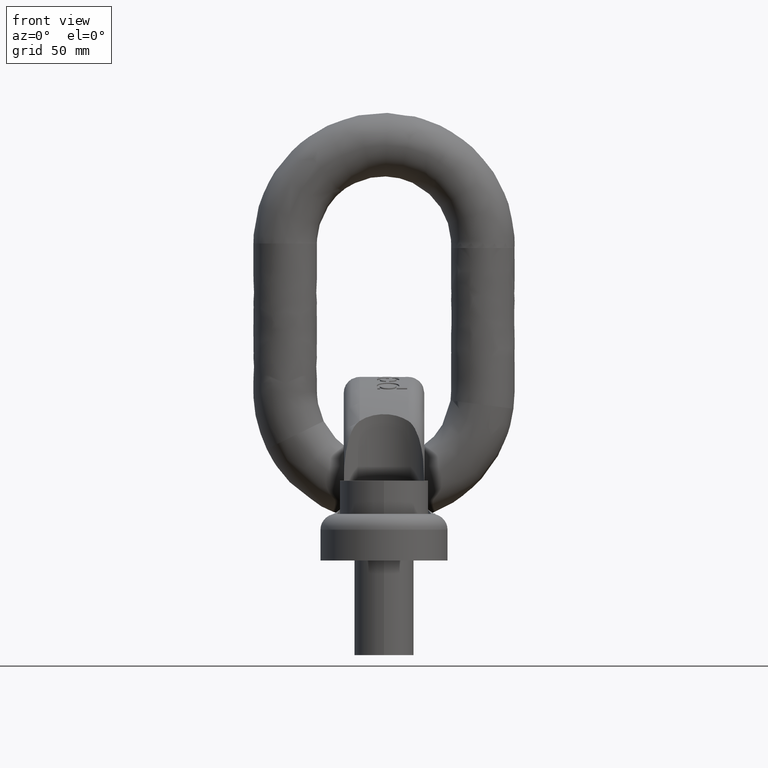
[diagram: clean part render]
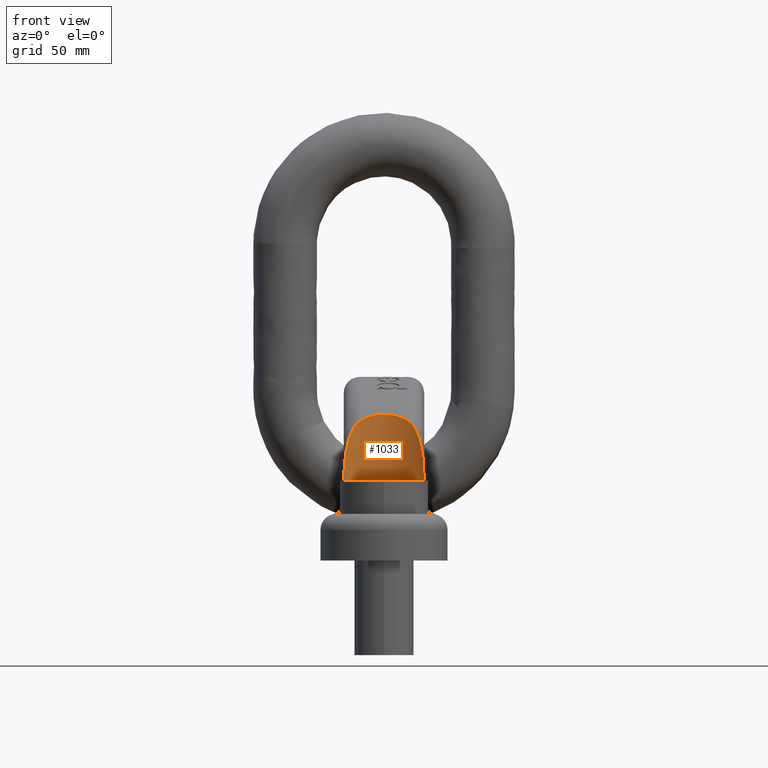
[diagram: same view with one face highlighted and labeled with its STEP entity id]
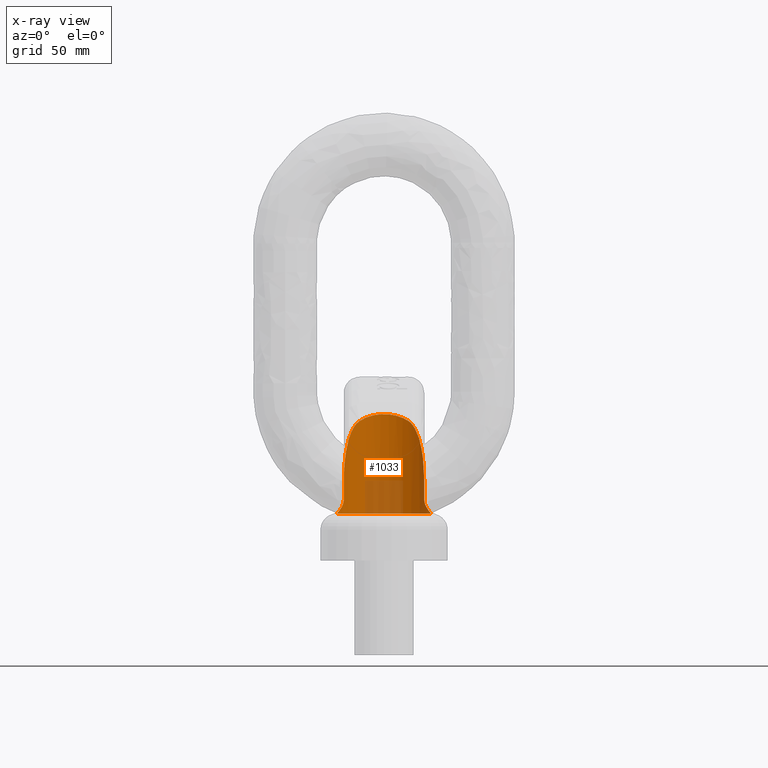
[diagram: x-ray of the same camera — body ghosted, the highlighted face saturated]
A machine part, front view. The second image highlights one B-rep face of the part: STEP entity #1033.
The next image is the same camera in x-ray: the body ghosted, the highlighted face saturated — about 17% of this face is hidden behind the body in this view.
In plain terms, the highlighted cylindrical surface (partial cylindrical patch) has radius 33.5 mm, axis along (0, 0, -1).
Its self-contained STEP definition (entity closure, byte-faithful):
#879=FACE_OUTER_BOUND('',#1616,.T.);
#1033=ADVANCED_FACE('',(#879),#1164,.F.);
#1164=CYLINDRICAL_SURFACE('',#3668,33.5);
#1183=LINE('',#4936,#1313);
#1189=LINE('',#4967,#1319);
#1313=VECTOR('',#3804,1.);
#1319=VECTOR('',#3816,1.);
#1616=EDGE_LOOP('',(#2396,#2397,#2398,#2399,#2400,#2401,#2402,#2403,#2404,
#2405,#2406,#2407));
#1758=B_SPLINE_CURVE_WITH_KNOTS('',3,(#4582,#4583,#4584,#4585,#4586,#4587,
#4588,#4589,#4590,#4591),.UNSPECIFIED.,.F.,.F.,(4,2,2,2,4),(0.,0.25,0.5,
0.75,1.),.UNSPECIFIED.);
#1784=B_SPLINE_CURVE_WITH_KNOTS('',3,(#4998,#4999,#5000,#5001,#5002,#5003,
#5004,#5005,#5006,#5007),.UNSPECIFIED.,.F.,.F.,(4,2,2,2,4),(0.,0.125,0.25,
0.500000000000001,1.),.UNSPECIFIED.);
#1786=B_SPLINE_CURVE_WITH_KNOTS('',3,(#5019,#5020,#5021,#5022,#5023,#5024,
#5025,#5026,#5027,#5028,#5029,#5030),.UNSPECIFIED.,.F.,.F.,(4,2,2,2,2,4),
(0.,0.25,0.5,0.75,0.875,1.),.UNSPECIFIED.);
#1814=B_SPLINE_CURVE_WITH_KNOTS('',3,(#5767,#5768,#5769,#5770,#5771,#5772),
 .UNSPECIFIED.,.F.,.F.,(4,2,4),(0.,0.5,1.),.UNSPECIFIED.);
#1815=B_SPLINE_CURVE_WITH_KNOTS('',3,(#5776,#5777,#5778,#5779,#5780,#5781),
 .UNSPECIFIED.,.F.,.F.,(4,2,4),(0.,0.5,1.),.UNSPECIFIED.);
#1816=B_SPLINE_CURVE_WITH_KNOTS('',3,(#5800,#5801,#5802,#5803),
 .UNSPECIFIED.,.F.,.F.,(4,4),(0.,1.),.UNSPECIFIED.);
#1817=B_SPLINE_CURVE_WITH_KNOTS('',3,(#5818,#5819,#5820,#5821),
 .UNSPECIFIED.,.F.,.F.,(4,4),(0.,1.),.UNSPECIFIED.);
#1818=B_SPLINE_CURVE_WITH_KNOTS('',3,(#5836,#5837,#5838,#5839,#5840,#5841),
 .UNSPECIFIED.,.F.,.F.,(4,2,4),(0.,0.5,1.),.UNSPECIFIED.);
#1819=B_SPLINE_CURVE_WITH_KNOTS('',3,(#5860,#5861,#5862,#5863,#5864,#5865),
 .UNSPECIFIED.,.F.,.F.,(4,2,4),(0.,0.5,1.),.UNSPECIFIED.);
#1994=CIRCLE('',#3611,33.5);
#2396=ORIENTED_EDGE('',*,*,#3267,.T.);
#2397=ORIENTED_EDGE('',*,*,#3324,.F.);
#2398=ORIENTED_EDGE('',*,*,#3326,.F.);
#2399=ORIENTED_EDGE('',*,*,#3327,.F.);
#2400=ORIENTED_EDGE('',*,*,#3182,.T.);
#2401=ORIENTED_EDGE('',*,*,#3204,.T.);
#2402=ORIENTED_EDGE('',*,*,#3146,.F.);
#2403=ORIENTED_EDGE('',*,*,#3202,.T.);
#2404=ORIENTED_EDGE('',*,*,#3192,.T.);
#2405=ORIENTED_EDGE('',*,*,#3319,.F.);
#2406=ORIENTED_EDGE('',*,*,#3321,.F.);
#2407=ORIENTED_EDGE('',*,*,#3322,.F.);
#2880=VERTEX_POINT('',#4581);
#2881=VERTEX_POINT('',#4592);
#2916=VERTEX_POINT('',#4937);
#2917=VERTEX_POINT('',#4938);
#2926=VERTEX_POINT('',#4968);
#2927=VERTEX_POINT('',#4969);
#2981=VERTEX_POINT('',#5266);
#2982=VERTEX_POINT('',#5267);
#3000=VERTEX_POINT('',#5766);
#3001=VERTEX_POINT('',#5775);
#3002=VERTEX_POINT('',#5817);
#3003=VERTEX_POINT('',#5835);
#3146=EDGE_CURVE('',#2880,#2881,#1758,.T.);
#3182=EDGE_CURVE('',#2916,#2917,#1183,.T.);
#3192=EDGE_CURVE('',#2926,#2927,#1189,.T.);
#3202=EDGE_CURVE('',#2880,#2926,#1784,.T.);
#3204=EDGE_CURVE('',#2917,#2881,#1786,.T.);
#3267=EDGE_CURVE('',#2981,#2982,#1994,.T.);
#3319=EDGE_CURVE('',#3000,#2927,#1814,.T.);
#3321=EDGE_CURVE('',#3001,#3000,#1815,.T.);
#3322=EDGE_CURVE('',#2981,#3001,#1816,.T.);
#3324=EDGE_CURVE('',#3002,#2982,#1817,.T.);
#3326=EDGE_CURVE('',#3003,#3002,#1818,.T.);
#3327=EDGE_CURVE('',#2916,#3003,#1819,.T.);
#3611=AXIS2_PLACEMENT_3D('',#5265,#3933,#3934);
#3668=AXIS2_PLACEMENT_3D('',#5938,#4056,#4057);
#3804=DIRECTION('',(0.,0.,1.));
#3816=DIRECTION('',(0.,0.,-1.));
#3933=DIRECTION('',(0.,0.,-1.));
#3934=DIRECTION('',(-1.,0.,0.));
#4056=DIRECTION('',(0.,0.,-1.));
#4057=DIRECTION('',(-1.,0.,0.));
#4581=CARTESIAN_POINT('',(-17.25,-71.2826272093006,98.7859183879032));
#4582=CARTESIAN_POINT('',(-17.25,-71.2826272093006,98.7859183879032));
#4583=CARTESIAN_POINT('',(-14.8813647937172,-69.8598314122697,100.327595161293));
#4584=CARTESIAN_POINT('',(-12.1966958032285,-68.649245317609,101.539626679179));
#4585=CARTESIAN_POINT('',(-6.3098938495463,-66.9573843759394,103.193361406412));
#4586=CARTESIAN_POINT('',(-3.19926131233263,-66.5018806193998,103.615153336341));
#4587=CARTESIAN_POINT('',(3.15975479605188,-66.4981310281,103.618684329301));
#4588=CARTESIAN_POINT('',(6.28871737302941,-66.952798327085,103.197740495797));
#4589=CARTESIAN_POINT('',(12.1876928625858,-68.6451654876727,101.543717653134));
#4590=CARTESIAN_POINT('',(14.8815531721434,-69.8599445677432,100.327472551171));
#4591=CARTESIAN_POINT('',(17.24999999998,-71.2826272092886,98.7859183879162));
#4592=CARTESIAN_POINT('',(17.24999999998,-71.2826272092887,98.7859183879162));
#4936=CARTESIAN_POINT('',(28.5,-82.393183138341,139.7));
#4937=CARTESIAN_POINT('',(28.5,-82.393183138341,43.4352484422014));
#4938=CARTESIAN_POINT('',(28.5,-82.393183138341,56.7576487121894));
#4967=CARTESIAN_POINT('',(-28.5,-82.393183138341,139.7));
#4968=CARTESIAN_POINT('',(-28.5,-82.393183138341,56.7576487122078));
#4969=CARTESIAN_POINT('',(-28.5,-82.393183138341,43.4352484422014));
#4998=CARTESIAN_POINT('',(-17.25,-71.2826272093006,98.7859183879032));
#4999=CARTESIAN_POINT('',(-18.7327053409329,-72.1732611582173,97.8208679741319));
#5000=CARTESIAN_POINT('',(-19.881394419516,-73.0068914220439,96.4917327968405));
#5001=CARTESIAN_POINT('',(-21.8887024871998,-74.6074330129358,93.5211167665116));
#5002=CARTESIAN_POINT('',(-22.6982387099183,-75.3422763055192,91.9185136062361));
#5003=CARTESIAN_POINT('',(-24.8053191386333,-77.3991226777865,86.8995580299844));
#5004=CARTESIAN_POINT('',(-25.7736021737591,-78.5669346959699,83.2703942667843));
#5005=CARTESIAN_POINT('',(-27.9490631349379,-81.3795999175278,72.2593920057542));
#5006=CARTESIAN_POINT('',(-28.4999999999991,-82.3931831383393,64.4681849493508));
#5007=CARTESIAN_POINT('',(-28.5,-82.3931831383408,56.7576487122078));
#5019=CARTESIAN_POINT('',(28.5,-82.393183138341,56.7576487121894));
#5020=CARTESIAN_POINT('',(28.5,-82.393183138341,60.6132791481439));
#5021=CARTESIAN_POINT('',(28.3491767950717,-82.1417903864175,64.5085900530411));
#5022=CARTESIAN_POINT('',(27.7090981824433,-81.163934766608,72.1621844975057));
#5023=CARTESIAN_POINT('',(27.2261992385297,-80.4454837459143,75.9118302351205));
#5024=CARTESIAN_POINT('',(25.7814345248804,-78.576586062284,83.2370135048476));
#5025=CARTESIAN_POINT('',(24.8183166928072,-77.4130203215803,86.8616389382524));
#5026=CARTESIAN_POINT('',(22.7075027994182,-75.3507213040855,91.8998880106615));
#5027=CARTESIAN_POINT('',(21.886480052795,-74.6059683843252,93.5230218169114));
#5028=CARTESIAN_POINT('',(19.8934707261995,-73.0162146231273,96.475238172103));
#5029=CARTESIAN_POINT('',(18.7262371651425,-72.1693758434555,97.8250779243891));
#5030=CARTESIAN_POINT('',(17.24999999998,-71.2826272092887,98.7859183879163));
#5265=CARTESIAN_POINT('',(0.,-100.,32.9999999999999));
#5266=CARTESIAN_POINT('',(-33.4928239246255,-100.693358171535,32.9999999999999));
#5267=CARTESIAN_POINT('',(33.4928239246255,-100.693358171536,32.9999999999999));
#5766=CARTESIAN_POINT('',(-30.0102926850077,-85.1126787849468,37.8049197290369));
#5767=CARTESIAN_POINT('',(-30.0102926850077,-85.1126787849468,37.8049197290369));
#5768=CARTESIAN_POINT('',(-29.616540131063,-84.3189409983664,38.4860584023411));
#5769=CARTESIAN_POINT('',(-29.2372413513385,-83.6370957016725,39.3082193999268));
#5770=CARTESIAN_POINT('',(-28.6764816105032,-82.6731329619254,41.2154165570666));
#5771=CARTESIAN_POINT('',(-28.5,-82.393183138341,42.3122432777244));
#5772=CARTESIAN_POINT('',(-28.5,-82.393183138341,43.4352484422014));
#5775=CARTESIAN_POINT('',(-33.4994722958304,-100.188031648631,33.0051585819053));
#5776=CARTESIAN_POINT('',(-33.4994722958304,-100.188031648631,33.0051585819053));
#5777=CARTESIAN_POINT('',(-33.5151205148886,-97.4001654323082,33.0620354908098));
#5778=CARTESIAN_POINT('',(-33.1846119190713,-94.6858520165628,33.3920250433482));
#5779=CARTESIAN_POINT('',(-31.9146395081485,-89.4684083788742,34.9211466395274));
#5780=CARTESIAN_POINT('',(-30.9958495129604,-87.0993927435778,36.1000396881774));
#5781=CARTESIAN_POINT('',(-30.0102926850077,-85.1126787849468,37.8049197290369));
#5800=CARTESIAN_POINT('',(-33.4928239246255,-100.693358171535,32.9999999999999));
#5801=CARTESIAN_POINT('',(-33.4963106992623,-100.524928730924,32.9999999999999));
#5802=CARTESIAN_POINT('',(-33.4985269149096,-100.356459475534,33.001722386111));
#5803=CARTESIAN_POINT('',(-33.4994722958304,-100.188031648631,33.0051585819053));
#5817=CARTESIAN_POINT('',(33.4994722958303,-100.18803164863,33.0051585819053));
#5818=CARTESIAN_POINT('',(33.4994722958303,-100.18803164863,33.0051585819053));
#5819=CARTESIAN_POINT('',(33.4985269149095,-100.356459475534,33.001722386111));
#5820=CARTESIAN_POINT('',(33.4963106992623,-100.524928730924,33.));
#5821=CARTESIAN_POINT('',(33.4928239246255,-100.693358171536,33.));
#5835=CARTESIAN_POINT('',(30.0102926850076,-85.1126787849468,37.8049197290369));
#5836=CARTESIAN_POINT('',(30.0102926850077,-85.1126787849468,37.8049197290369));
#5837=CARTESIAN_POINT('',(30.9932516646201,-87.0941559257569,36.1045336145133));
#5838=CARTESIAN_POINT('',(31.9162172259135,-89.4819122255518,34.919694418382));
#5839=CARTESIAN_POINT('',(33.1731318714598,-94.6317214787762,33.4054037628079));
#5840=CARTESIAN_POINT('',(33.5150933619019,-97.4050029728598,33.0619367972816));
#5841=CARTESIAN_POINT('',(33.4994722958305,-100.18803164863,33.0051585819053));
#5860=CARTESIAN_POINT('',(28.5,-82.393183138341,43.4352484422014));
#5861=CARTESIAN_POINT('',(28.5,-82.393183138341,42.3194765100807));
#5862=CARTESIAN_POINT('',(28.6745981709262,-82.6698702009532,41.2213997093426));
#5863=CARTESIAN_POINT('',(29.2398808660245,-83.6416582118911,39.299665330103));
#5864=CARTESIAN_POINT('',(29.6166744673898,-84.3192117974191,38.4858260186612));
#5865=CARTESIAN_POINT('',(30.0102926850076,-85.1126787849466,37.8049197290368));
#5938=CARTESIAN_POINT('',(0.,-100.,139.7));